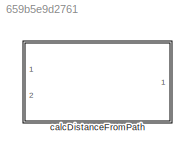
MODEL slx_659b5e9d2761
KIND library
CONFIG AbsTol = auto
CONFIG EnableMultiTasking = off
CONFIG FixedStep = auto
CONFIG MaxStep = auto
CONFIG MinStep = auto
CONFIG RelTol = 1e-3
CONFIG SampleTimeConstraint = Unconstrained
CONFIG SolverName = VariableStepAuto
CONFIG StartTime = 0.0
CONFIG StopTime = 10.0
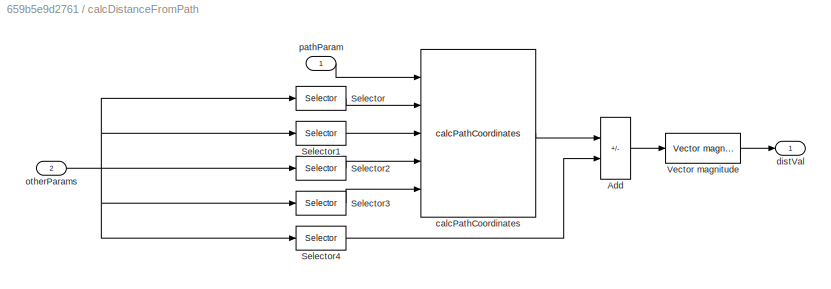
BLOCK [SubSystem] calcDistanceFromPath
  Ports = [2, 1]
  RequestExecContextInheritance = off
BLOCK [Sum] calcDistanceFromPath/Add
  IconShape = rectangular
  Inputs = +-
  Ports = [2, 1]
BLOCK [Selector] calcDistanceFromPath/Selector
  IndexOptions = Index vector (dialog)
  Indices = 1
  InputPortWidth = 7
  OutputSizes = 1
  Ports = [1, 1]
BLOCK [Selector] calcDistanceFromPath/Selector1
  IndexOptions = Index vector (dialog)
  Indices = 2
  InputPortWidth = 7
  OutputSizes = 1
  Ports = [1, 1]
BLOCK [Selector] calcDistanceFromPath/Selector2
  IndexOptions = Index vector (dialog)
  Indices = 3
  InputPortWidth = 7
  OutputSizes = 1
  Ports = [1, 1]
BLOCK [Selector] calcDistanceFromPath/Selector3
  IndexOptions = Index vector (dialog)
  Indices = 4
  InputPortWidth = 7
  OutputSizes = 1
  Ports = [1, 1]
BLOCK [Selector] calcDistanceFromPath/Selector4
  IndexOptions = Index vector (dialog)
  Indices = [5 6 7]
  InputPortWidth = 7
  OutputSizes = 1
  Ports = [1, 1]
BLOCK [Reference] calcDistanceFromPath/Vector magnitude  REF=calculate_vector_magnitude/Vector magnitude  (lib defined in slx_4d1e83c0815f)
  Ports = [1, 1]
  SourceBlock = calculate_vector_magnitude/Vector magnitude
BLOCK [Reference] calcDistanceFromPath/calcPathCoordinates  REF=calc_path_coordinates/calcPathCoordinates  (lib defined in slx_545a7c4fd45d)
  Ports = [5, 1]
  SourceBlock = calc_path_coordinates/calcPathCoordinates
  SourceType = SubSystem
BLOCK [Outport] calcDistanceFromPath/distVal
BLOCK [Inport] calcDistanceFromPath/otherParams
  Port = 2
BLOCK [Inport] calcDistanceFromPath/pathParam
LINE calcDistanceFromPath/Add:1 -> calcDistanceFromPath/Vector magnitude:1
LINE calcDistanceFromPath/Selector1:1 -> calcDistanceFromPath/calcPathCoordinates:3
LINE calcDistanceFromPath/Selector2:1 -> calcDistanceFromPath/calcPathCoordinates:4
LINE calcDistanceFromPath/Selector3:1 -> calcDistanceFromPath/calcPathCoordinates:5
LINE calcDistanceFromPath/Selector4:1 -> calcDistanceFromPath/Add:2
LINE calcDistanceFromPath/Selector:1 -> calcDistanceFromPath/calcPathCoordinates:2
LINE calcDistanceFromPath/Vector magnitude:1 -> calcDistanceFromPath/distVal:1
LINE calcDistanceFromPath/calcPathCoordinates:1 -> calcDistanceFromPath/Add:1
NET calcDistanceFromPath/otherParams:1 -> calcDistanceFromPath/Selector1:1, calcDistanceFromPath/Selector2:1, calcDistanceFromPath/Selector3:1, calcDistanceFromPath/Selector4:1, calcDistanceFromPath/Selector:1
LINE calcDistanceFromPath/pathParam:1 -> calcDistanceFromPath/calcPathCoordinates:1
note: NET lines group one-source signal fan-out (src -> all destinations, sorted); 1:1 wires keep LINE
